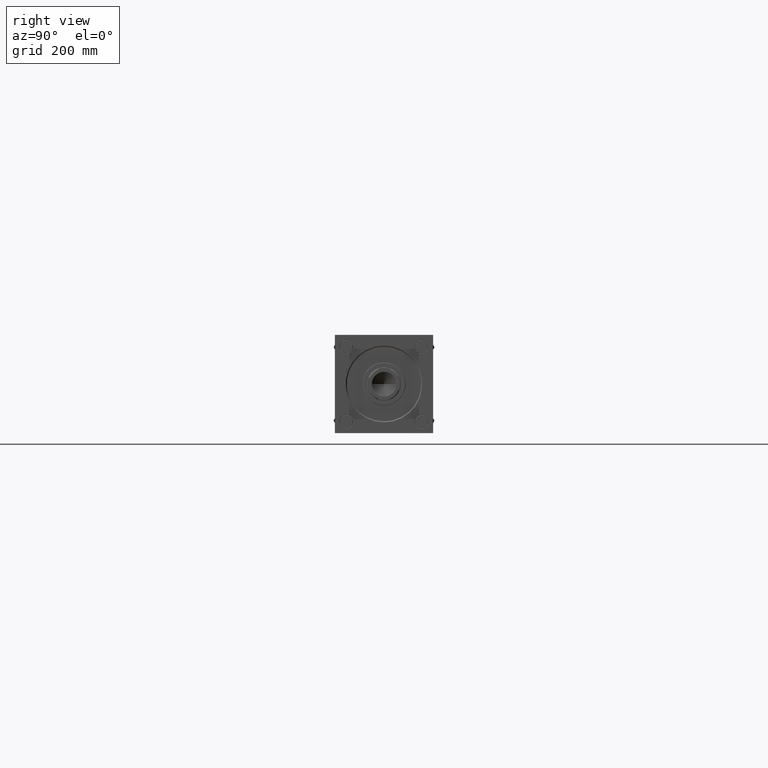
[diagram: clean part render]
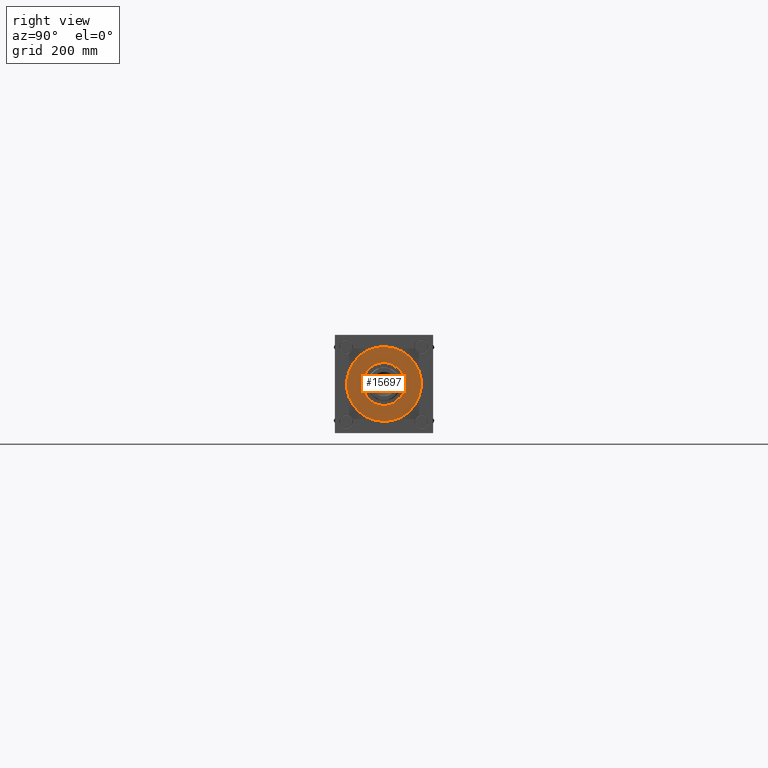
[diagram: same view with one face highlighted and labeled with its STEP entity id]
A machine part, right view. The second image highlights one B-rep face of the part: STEP entity #15697.
In plain terms, the highlighted planar face has unit normal (1, 0, 0).
Its self-contained STEP definition (entity closure, byte-faithful):
#736 = FACE_BOUND ( 'NONE', #4707, .T. ) ;
#4707 = EDGE_LOOP ( 'NONE', ( #20720, #5754 ) ) ;
#5754 = ORIENTED_EDGE ( 'NONE', *, *, #37295, .F. ) ;
#7871 = CARTESIAN_POINT ( 'NONE',  ( -62.75000000000000000, 0.000000000000000000, 28.69999999999999929 ) ) ;
#9136 = CARTESIAN_POINT ( 'NONE',  ( 0.000000000000000000, 0.000000000000000000, 28.69999999999999929 ) ) ;
#9921 = CIRCLE ( 'NONE', #32124, 62.75000000000000000 ) ;
#9995 = DIRECTION ( 'NONE',  ( 1.000000000000000000, 0.000000000000000000, 0.000000000000000000 ) ) ;
#10394 = VERTEX_POINT ( 'NONE', #7871 ) ;
#13299 = DIRECTION ( 'NONE',  ( 0.000000000000000000, 0.000000000000000000, 1.000000000000000000 ) ) ;
#14036 = EDGE_CURVE ( 'NONE', #28755, #10394, #42646, .T. ) ;
#14252 = PLANE ( 'NONE',  #30693 ) ;
#15697 = ADVANCED_FACE ( 'NONE', ( #736, #41179 ), #14252, .T. ) ;
#17651 = DIRECTION ( 'NONE',  ( 1.000000000000000000, 0.000000000000000000, 0.000000000000000000 ) ) ;
#19866 = VERTEX_POINT ( 'NONE', #53574 ) ;
#20720 = ORIENTED_EDGE ( 'NONE', *, *, #20827, .F. ) ;
#20827 = EDGE_CURVE ( 'NONE', #21583, #19866, #41771, .T. ) ;
#21583 = VERTEX_POINT ( 'NONE', #35950 ) ;
#24174 = ORIENTED_EDGE ( 'NONE', *, *, #14036, .T. ) ;
#28191 = DIRECTION ( 'NONE',  ( 1.000000000000000000, 0.000000000000000000, 0.000000000000000000 ) ) ;
#28755 = VERTEX_POINT ( 'NONE', #34335 ) ;
#30693 = AXIS2_PLACEMENT_3D ( 'NONE', #54760, #54194, #49275 ) ;
#30971 = CARTESIAN_POINT ( 'NONE',  ( 0.000000000000000000, 0.000000000000000000, 28.69999999999999929 ) ) ;
#32124 = AXIS2_PLACEMENT_3D ( 'NONE', #9136, #39834, #9995 ) ;
#33818 = EDGE_LOOP ( 'NONE', ( #43532, #24174 ) ) ;
#34335 = CARTESIAN_POINT ( 'NONE',  ( 62.75000000000000000, 7.684658664649641591E-15, 28.69999999999999929 ) ) ;
#35950 = CARTESIAN_POINT ( 'NONE',  ( -36.00000000000000000, 0.000000000000000000, 28.69999999999999929 ) ) ;
#36541 = CARTESIAN_POINT ( 'NONE',  ( 0.000000000000000000, 0.000000000000000000, 28.69999999999999929 ) ) ;
#37295 = EDGE_CURVE ( 'NONE', #19866, #21583, #43961, .T. ) ;
#38995 = AXIS2_PLACEMENT_3D ( 'NONE', #36541, #44136, #57179 ) ;
#39834 = DIRECTION ( 'NONE',  ( 0.000000000000000000, 0.000000000000000000, 1.000000000000000000 ) ) ;
#41179 = FACE_OUTER_BOUND ( 'NONE', #33818, .T. ) ;
#41771 = CIRCLE ( 'NONE', #49174, 36.00000000000000000 ) ;
#42258 = EDGE_CURVE ( 'NONE', #10394, #28755, #9921, .T. ) ;
#42646 = CIRCLE ( 'NONE', #38995, 62.75000000000000000 ) ;
#43532 = ORIENTED_EDGE ( 'NONE', *, *, #42258, .T. ) ;
#43961 = CIRCLE ( 'NONE', #47667, 36.00000000000000000 ) ;
#44136 = DIRECTION ( 'NONE',  ( 0.000000000000000000, 0.000000000000000000, 1.000000000000000000 ) ) ;
#46088 = DIRECTION ( 'NONE',  ( 0.000000000000000000, 0.000000000000000000, 1.000000000000000000 ) ) ;
#47667 = AXIS2_PLACEMENT_3D ( 'NONE', #49309, #46088, #28191 ) ;
#49174 = AXIS2_PLACEMENT_3D ( 'NONE', #30971, #13299, #17651 ) ;
#49275 = DIRECTION ( 'NONE',  ( 1.000000000000000000, 0.000000000000000000, -0.000000000000000000 ) ) ;
#49309 = CARTESIAN_POINT ( 'NONE',  ( 0.000000000000000000, 0.000000000000000000, 28.69999999999999929 ) ) ;
#53574 = CARTESIAN_POINT ( 'NONE',  ( 36.00000000000000000, 4.408728476930470856E-15, 28.69999999999999929 ) ) ;
#54194 = DIRECTION ( 'NONE',  ( 0.000000000000000000, 0.000000000000000000, 1.000000000000000000 ) ) ;
#54760 = CARTESIAN_POINT ( 'NONE',  ( 0.000000000000000000, 0.000000000000000000, 28.69999999999999929 ) ) ;
#57179 = DIRECTION ( 'NONE',  ( 1.000000000000000000, 0.000000000000000000, 0.000000000000000000 ) ) ;